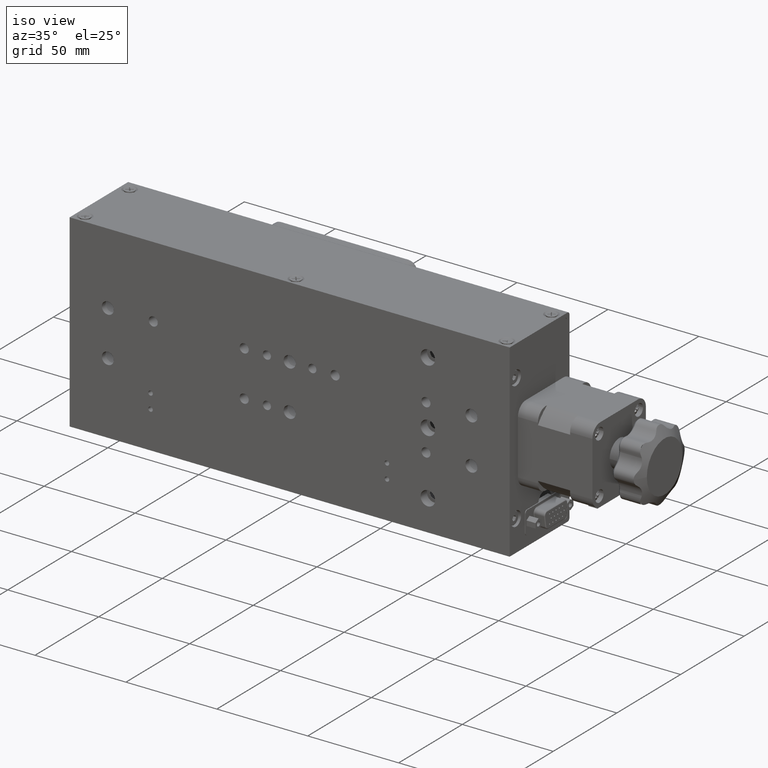
[diagram: clean part render]
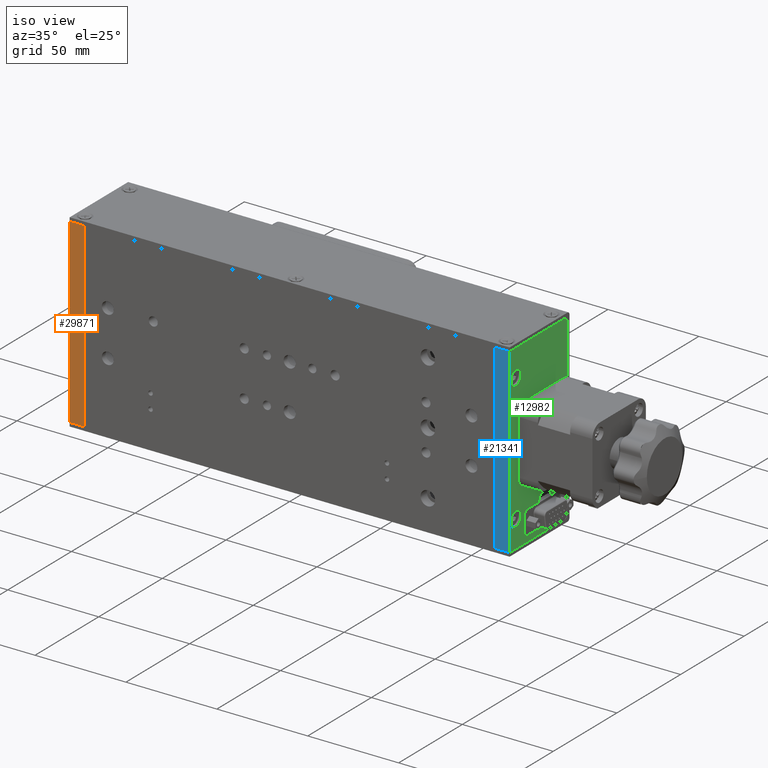
[diagram: same view with three faces highlighted in distinct colors, each labeled with its STEP entity id]
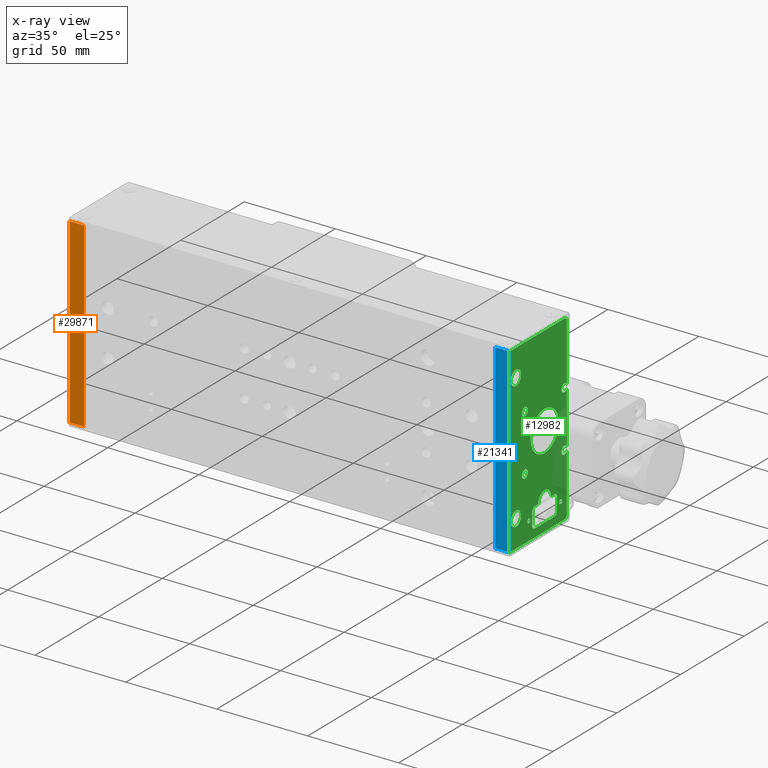
[diagram: x-ray of the same camera — body ghosted, the three highlighted faces saturated]
A machine part, iso view with three faces highlighted in distinct colors.
The next image is the same camera in x-ray (body ghosted, the three faces saturated) — at least one of them is partly hidden behind the body in this view.
Their STEP definitions:

[orange] entity #29871 — the highlighted planar face has unit normal (0, 1, 0).
#688 = CARTESIAN_POINT ( 'NONE',  ( -121.0000000000000100, 0.0000000000000000000, 50.00000000000000000 ) ) ;
#836 = EDGE_CURVE ( 'NONE', #26677, #17364, #11246, .T. ) ;
#1083 = AXIS2_PLACEMENT_3D ( 'NONE', #19672, #3328, #22498 ) ;
#3090 = VECTOR ( 'NONE', #12818, 1000.000000000000000 ) ;
#3328 = DIRECTION ( 'NONE',  ( 0.0000000000000000000, 1.000000000000000000, 0.0000000000000000000 ) ) ;
#4644 = EDGE_LOOP ( 'NONE', ( #24089, #24275, #25326, #11110 ) ) ;
#5224 = VECTOR ( 'NONE', #30738, 1000.000000000000000 ) ;
#5941 = PLANE ( 'NONE',  #1083 ) ;
#7901 = CARTESIAN_POINT ( 'NONE',  ( -121.0000000000000100, 0.0000000000000000000, 50.00000000000000000 ) ) ;
#9509 = EDGE_CURVE ( 'NONE', #24808, #20446, #17739, .T. ) ;
#10645 = DIRECTION ( 'NONE',  ( 1.000000000000000000, 0.0000000000000000000, 0.0000000000000000000 ) ) ;
#11110 = ORIENTED_EDGE ( 'NONE', *, *, #31857, .T. ) ;
#11246 = LINE ( 'NONE', #13892, #3090 ) ;
#12373 = CARTESIAN_POINT ( 'NONE',  ( -113.0000000000000000, 0.0000000000000000000, -50.00000000000000000 ) ) ;
#12818 = DIRECTION ( 'NONE',  ( 1.000000000000000000, 0.0000000000000000000, 0.0000000000000000000 ) ) ;
#13892 = CARTESIAN_POINT ( 'NONE',  ( -121.0000000000000100, 0.0000000000000000000, -50.00000000000000000 ) ) ;
#14560 = LINE ( 'NONE', #29273, #21864 ) ;
#15562 = DIRECTION ( 'NONE',  ( 0.0000000000000000000, -0.0000000000000000000, -1.000000000000000000 ) ) ;
#17364 = VERTEX_POINT ( 'NONE', #12373 ) ;
#17739 = LINE ( 'NONE', #7901, #25069 ) ;
#19672 = CARTESIAN_POINT ( 'NONE',  ( -121.0000000000000100, 0.0000000000000000000, 50.00000000000000000 ) ) ;
#20446 = VERTEX_POINT ( 'NONE', #25973 ) ;
#21683 = FACE_OUTER_BOUND ( 'NONE', #4644, .T. ) ;
#21864 = VECTOR ( 'NONE', #15562, 1000.000000000000000 ) ;
#22283 = CARTESIAN_POINT ( 'NONE',  ( -113.0000000000000000, 0.0000000000000000000, 50.00000000000000000 ) ) ;
#22498 = DIRECTION ( 'NONE',  ( -1.000000000000000000, 0.0000000000000000000, 0.0000000000000000000 ) ) ;
#24089 = ORIENTED_EDGE ( 'NONE', *, *, #836, .T. ) ;
#24275 = ORIENTED_EDGE ( 'NONE', *, *, #33282, .F. ) ;
#24808 = VERTEX_POINT ( 'NONE', #688 ) ;
#25069 = VECTOR ( 'NONE', #10645, 1000.000000000000000 ) ;
#25326 = ORIENTED_EDGE ( 'NONE', *, *, #9509, .F. ) ;
#25973 = CARTESIAN_POINT ( 'NONE',  ( -113.0000000000000000, 0.0000000000000000000, 50.00000000000000000 ) ) ;
#26677 = VERTEX_POINT ( 'NONE', #26865 ) ;
#26865 = CARTESIAN_POINT ( 'NONE',  ( -121.0000000000000100, 0.0000000000000000000, -50.00000000000000000 ) ) ;
#27137 = LINE ( 'NONE', #22283, #5224 ) ;
#29273 = CARTESIAN_POINT ( 'NONE',  ( -121.0000000000000100, 0.0000000000000000000, 50.00000000000000000 ) ) ;
#29871 = ADVANCED_FACE ( 'NONE', ( #21683 ), #5941, .F. ) ;
#30738 = DIRECTION ( 'NONE',  ( 0.0000000000000000000, -0.0000000000000000000, -1.000000000000000000 ) ) ;
#31857 = EDGE_CURVE ( 'NONE', #24808, #26677, #14560, .T. ) ;
#33282 = EDGE_CURVE ( 'NONE', #20446, #17364, #27137, .T. ) ;

[blue] entity #21341 — the highlighted planar face has unit normal (-0, 1, 0).
#269 = VERTEX_POINT ( 'NONE', #25150 ) ;
#757 = DIRECTION ( 'NONE',  ( -0.0000000000000000000, -5.551115123125781500E-017, 1.000000000000000000 ) ) ;
#5368 = DIRECTION ( 'NONE',  ( -0.0000000000000000000, 1.000000000000000000, 5.551115123125781500E-017 ) ) ;
#6617 = FACE_OUTER_BOUND ( 'NONE', #23344, .T. ) ;
#7030 = EDGE_CURVE ( 'NONE', #11989, #11860, #24735, .T. ) ;
#7035 = VECTOR ( 'NONE', #12781, 1000.000000000000000 ) ;
#7866 = CARTESIAN_POINT ( 'NONE',  ( 121.0000000000000100, 5.030698080332740600E-015, 50.00000000000000700 ) ) ;
#9353 = EDGE_CURVE ( 'NONE', #15656, #269, #22493, .T. ) ;
#9994 = EDGE_CURVE ( 'NONE', #11989, #15656, #31484, .T. ) ;
#10018 = CARTESIAN_POINT ( 'NONE',  ( 121.0000000000000100, 5.030698080332740600E-015, 50.00000000000000700 ) ) ;
#10401 = AXIS2_PLACEMENT_3D ( 'NONE', #21798, #5368, #24582 ) ;
#11580 = ORIENTED_EDGE ( 'NONE', *, *, #9353, .T. ) ;
#11860 = VERTEX_POINT ( 'NONE', #26298 ) ;
#11989 = VERTEX_POINT ( 'NONE', #21315 ) ;
#12183 = ORIENTED_EDGE ( 'NONE', *, *, #7030, .F. ) ;
#12781 = DIRECTION ( 'NONE',  ( -1.000000000000000000, 0.0000000000000000000, 0.0000000000000000000 ) ) ;
#14423 = CARTESIAN_POINT ( 'NONE',  ( 121.0000000000000100, 1.058181320345852300E-014, -50.00000000000002100 ) ) ;
#15053 = LINE ( 'NONE', #28720, #22335 ) ;
#15656 = VERTEX_POINT ( 'NONE', #7866 ) ;
#20224 = DIRECTION ( 'NONE',  ( -0.0000000000000000000, -5.551115123125781500E-017, 1.000000000000000000 ) ) ;
#21315 = CARTESIAN_POINT ( 'NONE',  ( 121.0000000000000100, 1.058181320345852300E-014, -50.00000000000002100 ) ) ;
#21341 = ADVANCED_FACE ( 'NONE', ( #6617 ), #27219, .F. ) ;
#21798 = CARTESIAN_POINT ( 'NONE',  ( 121.0000000000000100, 1.058181320345852300E-014, -50.00000000000002100 ) ) ;
#22335 = VECTOR ( 'NONE', #20224, 1000.000000000000000 ) ;
#22493 = LINE ( 'NONE', #10018, #7035 ) ;
#23260 = VECTOR ( 'NONE', #757, 1000.000000000000000 ) ;
#23344 = EDGE_LOOP ( 'NONE', ( #11580, #25805, #12183, #29904 ) ) ;
#23582 = CARTESIAN_POINT ( 'NONE',  ( 121.0000000000000100, 1.058181320345852300E-014, -50.00000000000002100 ) ) ;
#24582 = DIRECTION ( 'NONE',  ( 1.000000000000000000, 0.0000000000000000000, 0.0000000000000000000 ) ) ;
#24735 = LINE ( 'NONE', #23582, #31212 ) ;
#25150 = CARTESIAN_POINT ( 'NONE',  ( 113.0000000000000000, 5.030698080332740600E-015, 50.00000000000000700 ) ) ;
#25805 = ORIENTED_EDGE ( 'NONE', *, *, #26044, .F. ) ;
#26044 = EDGE_CURVE ( 'NONE', #11860, #269, #15053, .T. ) ;
#26298 = CARTESIAN_POINT ( 'NONE',  ( 113.0000000000000000, 1.058181320345852300E-014, -50.00000000000002100 ) ) ;
#26376 = DIRECTION ( 'NONE',  ( -1.000000000000000000, 0.0000000000000000000, 0.0000000000000000000 ) ) ;
#27219 = PLANE ( 'NONE',  #10401 ) ;
#28720 = CARTESIAN_POINT ( 'NONE',  ( 113.0000000000000000, 1.058181320345852300E-014, -50.00000000000002100 ) ) ;
#29904 = ORIENTED_EDGE ( 'NONE', *, *, #9994, .T. ) ;
#31212 = VECTOR ( 'NONE', #26376, 1000.000000000000000 ) ;
#31484 = LINE ( 'NONE', #14423, #23260 ) ;

[green] entity #12982 — the highlighted planar face has unit normal (-1, 0, 0).
#41 = DIRECTION ( 'NONE',  ( 1.000000000000000000, 0.0000000000000000000, 0.0000000000000000000 ) ) ;
#302 = DIRECTION ( 'NONE',  ( 1.000000000000000000, 0.0000000000000000000, 0.0000000000000000000 ) ) ;
#406 = CARTESIAN_POINT ( 'NONE',  ( 121.0000000000000300, 43.00000000000000700, 15.49999999999999800 ) ) ;
#709 = VERTEX_POINT ( 'NONE', #4170 ) ;
#715 = EDGE_LOOP ( 'NONE', ( #5901, #16315 ) ) ;
#716 = FACE_BOUND ( 'NONE', #715, .T. ) ;
#757 = DIRECTION ( 'NONE',  ( -0.0000000000000000000, -5.551115123125781500E-017, 1.000000000000000000 ) ) ;
#979 = EDGE_CURVE ( 'NONE', #34283, #18808, #21072, .T. ) ;
#1014 = CARTESIAN_POINT ( 'NONE',  ( 121.0000000000000100, 5.000000000000010700, -35.00000000000001400 ) ) ;
#1064 = CARTESIAN_POINT ( 'NONE',  ( 121.0000000000000100, 43.00000000000000700, -48.00000000000002100 ) ) ;
#1354 = ORIENTED_EDGE ( 'NONE', *, *, #9619, .F. ) ;
#1371 = DIRECTION ( 'NONE',  ( 0.0000000000000000000, 0.0000000000000000000, -1.000000000000000000 ) ) ;
#1485 = LINE ( 'NONE', #8121, #4934 ) ;
#1626 = ORIENTED_EDGE ( 'NONE', *, *, #9199, .T. ) ;
#1647 = CARTESIAN_POINT ( 'NONE',  ( 121.0000000000000100, 27.50000000000001400, -7.932920441069873900E-015 ) ) ;
#1719 = VERTEX_POINT ( 'NONE', #10387 ) ;
#1990 = CARTESIAN_POINT ( 'NONE',  ( 121.0000000000000100, 37.25000000000001400, -43.50000000000001400 ) ) ;
#2237 = EDGE_CURVE ( 'NONE', #32467, #5834, #29579, .T. ) ;
#2370 = AXIS2_PLACEMENT_3D ( 'NONE', #21248, #4828, #24025 ) ;
#2451 = EDGE_CURVE ( 'NONE', #27959, #29873, #9288, .T. ) ;
#2462 = ORIENTED_EDGE ( 'NONE', *, *, #35621, .T. ) ;
#2518 = CARTESIAN_POINT ( 'NONE',  ( 121.0000000000000100, 17.75000000000001400, -43.50000000000001400 ) ) ;
#2652 = CIRCLE ( 'NONE', #26771, 3.999999999999989800 ) ;
#2852 = EDGE_CURVE ( 'NONE', #7967, #15656, #5402, .T. ) ;
#2870 = EDGE_CURVE ( 'NONE', #4032, #29607, #4552, .T. ) ;
#2928 = AXIS2_PLACEMENT_3D ( 'NONE', #3788, #17798, #9598 ) ;
#2935 = VERTEX_POINT ( 'NONE', #13208 ) ;
#3075 = CIRCLE ( 'NONE', #30358, 2.249999999999998700 ) ;
#3145 = DIRECTION ( 'NONE',  ( 0.0000000000000000000, 1.000000000000000000, 0.0000000000000000000 ) ) ;
#3149 = VERTEX_POINT ( 'NONE', #23675 ) ;
#3192 = DIRECTION ( 'NONE',  ( -0.0000000000000000000, -5.551115123125781500E-017, 1.000000000000000000 ) ) ;
#3223 = AXIS2_PLACEMENT_3D ( 'NONE', #11753, #31022, #14505 ) ;
#3612 = LINE ( 'NONE', #4782, #18167 ) ;
#3750 = VERTEX_POINT ( 'NONE', #22103 ) ;
#3788 = CARTESIAN_POINT ( 'NONE',  ( 121.0000000000000100, 35.25000000000000000, -36.50000000000002100 ) ) ;
#3849 = DIRECTION ( 'NONE',  ( 0.0000000000000000000, 1.000000000000000000, 0.0000000000000000000 ) ) ;
#4032 = VERTEX_POINT ( 'NONE', #22893 ) ;
#4170 = CARTESIAN_POINT ( 'NONE',  ( 121.0000000000000100, 45.00000000000001400, -48.00000000000002100 ) ) ;
#4284 = EDGE_CURVE ( 'NONE', #9624, #18108, #19456, .T. ) ;
#4304 = CARTESIAN_POINT ( 'NONE',  ( 121.0000000000000100, 45.00000000000001400, -50.00000000000002100 ) ) ;
#4417 = DIRECTION ( 'NONE',  ( 0.0000000000000000000, 0.0000000000000000000, -1.000000000000000000 ) ) ;
#4552 = CIRCLE ( 'NONE', #2928, 2.000000000000001800 ) ;
#4613 = DIRECTION ( 'NONE',  ( -1.541976423090495100E-016, -1.000000000000000000, -5.551115123125782100E-017 ) ) ;
#4696 = LINE ( 'NONE', #18257, #11117 ) ;
#4782 = CARTESIAN_POINT ( 'NONE',  ( 121.0000000000000100, 17.75000000000001100, -36.50000000000002100 ) ) ;
#4788 = EDGE_CURVE ( 'NONE', #29873, #27959, #13391, .T. ) ;
#4828 = DIRECTION ( 'NONE',  ( -1.000000000000000000, 1.734723475976807600E-016, 9.629649721936179300E-033 ) ) ;
#4848 = AXIS2_PLACEMENT_3D ( 'NONE', #14037, #33330, #16819 ) ;
#4934 = VECTOR ( 'NONE', #21653, 1000.000000000000000 ) ;
#4957 = ORIENTED_EDGE ( 'NONE', *, *, #13370, .T. ) ;
#5328 = VERTEX_POINT ( 'NONE', #20984 ) ;
#5402 = LINE ( 'NONE', #14926, #32946 ) ;
#5530 = DIRECTION ( 'NONE',  ( 1.000000000000000000, 0.0000000000000000000, 0.0000000000000000000 ) ) ;
#5834 = VERTEX_POINT ( 'NONE', #28360 ) ;
#5883 = EDGE_CURVE ( 'NONE', #2935, #27059, #24610, .T. ) ;
#5901 = ORIENTED_EDGE ( 'NONE', *, *, #979, .F. ) ;
#6054 = VERTEX_POINT ( 'NONE', #2518 ) ;
#6162 = DIRECTION ( 'NONE',  ( -0.0000000000000000000, -1.046781708932291700E-015, 1.000000000000000000 ) ) ;
#6208 = VERTEX_POINT ( 'NONE', #17143 ) ;
#6266 = CIRCLE ( 'NONE', #16338, 3.999999999999993300 ) ;
#6354 = CARTESIAN_POINT ( 'NONE',  ( 121.0000000000000100, 12.00000000000001400, 15.49999999999998900 ) ) ;
#6436 = ORIENTED_EDGE ( 'NONE', *, *, #4788, .F. ) ;
#6486 = AXIS2_PLACEMENT_3D ( 'NONE', #12857, #32169, #15649 ) ;
#6964 = AXIS2_PLACEMENT_3D ( 'NONE', #15109, #34381, #11392 ) ;
#7078 = ORIENTED_EDGE ( 'NONE', *, *, #28794, .F. ) ;
#7082 = CIRCLE ( 'NONE', #11105, 1.130299999999986800 ) ;
#7179 = AXIS2_PLACEMENT_3D ( 'NONE', #13789, #33090, #16566 ) ;
#7866 = CARTESIAN_POINT ( 'NONE',  ( 121.0000000000000100, 5.030698080332740600E-015, 50.00000000000000700 ) ) ;
#7967 = VERTEX_POINT ( 'NONE', #26374 ) ;
#8039 = FACE_BOUND ( 'NONE', #20364, .T. ) ;
#8121 = CARTESIAN_POINT ( 'NONE',  ( 121.0000000000000100, 35.25000000000000000, -45.50000000000001400 ) ) ;
#8537 = EDGE_CURVE ( 'NONE', #12320, #16305, #6266, .T. ) ;
#8853 = FACE_BOUND ( 'NONE', #22946, .T. ) ;
#9082 = DIRECTION ( 'NONE',  ( 0.0000000000000000000, 1.000000000000000000, 0.0000000000000000000 ) ) ;
#9199 = EDGE_CURVE ( 'NONE', #13510, #709, #32891, .T. ) ;
#9288 = CIRCLE ( 'NONE', #34017, 1.130299999999986800 ) ;
#9403 = EDGE_CURVE ( 'NONE', #24408, #6054, #3612, .T. ) ;
#9506 = ORIENTED_EDGE ( 'NONE', *, *, #11334, .F. ) ;
#9598 = DIRECTION ( 'NONE',  ( 0.0000000000000000000, 0.0000000000000000000, -1.000000000000000000 ) ) ;
#9619 = EDGE_CURVE ( 'NONE', #29607, #23730, #31972, .T. ) ;
#9624 = VERTEX_POINT ( 'NONE', #11116 ) ;
#9673 = EDGE_CURVE ( 'NONE', #709, #16921, #21132, .T. ) ;
#9701 = CARTESIAN_POINT ( 'NONE',  ( 121.0000000000000100, 12.00000000000001400, -15.50000000000000400 ) ) ;
#9897 = EDGE_CURVE ( 'NONE', #5834, #32467, #2652, .T. ) ;
#9994 = EDGE_CURVE ( 'NONE', #11989, #15656, #31484, .T. ) ;
#10178 = ORIENTED_EDGE ( 'NONE', *, *, #2451, .F. ) ;
#10279 = CARTESIAN_POINT ( 'NONE',  ( 121.0000000000000100, 27.50000000000001400, 10.99999999999999300 ) ) ;
#10387 = CARTESIAN_POINT ( 'NONE',  ( 121.0000000000000100, 22.50000000000001400, -34.50000000000001400 ) ) ;
#10438 = CARTESIAN_POINT ( 'NONE',  ( 121.0000000000000100, 15.00000000000001400, -40.00000000000001400 ) ) ;
#10602 = VERTEX_POINT ( 'NONE', #22408 ) ;
#10713 = CARTESIAN_POINT ( 'NONE',  ( 121.0000000000000100, 12.00000000000001400, 15.49999999999998900 ) ) ;
#11002 = LINE ( 'NONE', #31097, #32113 ) ;
#11105 = AXIS2_PLACEMENT_3D ( 'NONE', #32333, #15830, #35103 ) ;
#11116 = CARTESIAN_POINT ( 'NONE',  ( 121.0000000000000100, 27.50000000000001400, -11.00000000000001100 ) ) ;
#11117 = VECTOR ( 'NONE', #4613, 1000.000000000000000 ) ;
#11334 = EDGE_CURVE ( 'NONE', #5328, #28275, #17674, .T. ) ;
#11392 = DIRECTION ( 'NONE',  ( 0.0000000000000000000, -1.000000000000000000, 0.0000000000000000000 ) ) ;
#11630 = CARTESIAN_POINT ( 'NONE',  ( 121.0000000000000100, 35.25000000000000000, -43.50000000000001400 ) ) ;
#11635 = CARTESIAN_POINT ( 'NONE',  ( 121.0000000000000100, 22.50000000000001400, -34.50000000000001400 ) ) ;
#11753 = CARTESIAN_POINT ( 'NONE',  ( 121.0000000000000100, 19.75000000000001100, -43.50000000000001400 ) ) ;
#11793 = EDGE_LOOP ( 'NONE', ( #27370, #25246 ) ) ;
#11928 = AXIS2_PLACEMENT_3D ( 'NONE', #16451, #41, #19197 ) ;
#11989 = VERTEX_POINT ( 'NONE', #21315 ) ;
#12031 = DIRECTION ( 'NONE',  ( -1.541976423090495100E-016, -1.000000000000000000, -5.551115123125782100E-017 ) ) ;
#12040 = CARTESIAN_POINT ( 'NONE',  ( 121.0000000000000100, 5.000000000000007100, 31.00000000000001100 ) ) ;
#12263 = CARTESIAN_POINT ( 'NONE',  ( 121.0000000000000100, 45.00000000000001400, -50.00000000000002100 ) ) ;
#12320 = VERTEX_POINT ( 'NONE', #12040 ) ;
#12462 = DIRECTION ( 'NONE',  ( 0.0000000000000000000, 1.000000000000000000, 0.0000000000000000000 ) ) ;
#12686 = EDGE_CURVE ( 'NONE', #16305, #12320, #31321, .T. ) ;
#12739 = EDGE_CURVE ( 'NONE', #29523, #3149, #17927, .T. ) ;
#12799 = CARTESIAN_POINT ( 'NONE',  ( 121.0000000000000100, 27.50000000000001800, -34.50000000000001400 ) ) ;
#12857 = CARTESIAN_POINT ( 'NONE',  ( 121.0000000000000100, 15.00000000000001400, -40.00000000000001400 ) ) ;
#12982 = ADVANCED_FACE ( 'NONE', ( #29962, #30829, #8853, #23482, #22620, #16192, #15325, #8039, #716 ), #14937, .F. ) ;
#13016 = ORIENTED_EDGE ( 'NONE', *, *, #9673, .T. ) ;
#13108 = ORIENTED_EDGE ( 'NONE', *, *, #12739, .T. ) ;
#13194 = DIRECTION ( 'NONE',  ( 0.0000000000000000000, -1.000000000000000000, 0.0000000000000000000 ) ) ;
#13208 = CARTESIAN_POINT ( 'NONE',  ( 121.0000000000000100, 9.750000000000016000, -15.50000000000000400 ) ) ;
#13370 = EDGE_CURVE ( 'NONE', #13960, #7967, #23411, .T. ) ;
#13391 = CIRCLE ( 'NONE', #6486, 1.130299999999986800 ) ;
#13444 = DIRECTION ( 'NONE',  ( 0.0000000000000000000, 1.000000000000000000, 0.0000000000000000000 ) ) ;
#13493 = LINE ( 'NONE', #4304, #20785 ) ;
#13510 = VERTEX_POINT ( 'NONE', #31267 ) ;
#13770 = CARTESIAN_POINT ( 'NONE',  ( 121.0000000000000100, 5.000000000000007100, 38.99999999999999300 ) ) ;
#13789 = CARTESIAN_POINT ( 'NONE',  ( 121.0000000000000100, 27.50000000000001400, -7.932920441069873900E-015 ) ) ;
#13878 = CARTESIAN_POINT ( 'NONE',  ( 121.0000000000000100, 16.13030000000000200, -40.00000000000001400 ) ) ;
#13954 = DIRECTION ( 'NONE',  ( -1.000000000000000000, 1.734723475976807600E-016, 9.629649721936179300E-033 ) ) ;
#13960 = VERTEX_POINT ( 'NONE', #22403 ) ;
#14037 = CARTESIAN_POINT ( 'NONE',  ( 121.0000000000000100, 43.00000000000000700, 48.00000000000000700 ) ) ;
#14360 = AXIS2_PLACEMENT_3D ( 'NONE', #1014, #17455, #33981 ) ;
#14377 = EDGE_CURVE ( 'NONE', #27059, #2935, #23002, .T. ) ;
#14386 = DIRECTION ( 'NONE',  ( 0.0000000000000000000, 0.0000000000000000000, 1.000000000000000000 ) ) ;
#14423 = CARTESIAN_POINT ( 'NONE',  ( 121.0000000000000100, 1.058181320345852300E-014, -50.00000000000002100 ) ) ;
#14505 = DIRECTION ( 'NONE',  ( 0.0000000000000000000, 0.0000000000000000000, -1.000000000000000000 ) ) ;
#14627 = ORIENTED_EDGE ( 'NONE', *, *, #2870, .F. ) ;
#14654 = VECTOR ( 'NONE', #33681, 1000.000000000000000 ) ;
#14695 = ORIENTED_EDGE ( 'NONE', *, *, #9897, .F. ) ;
#14926 = CARTESIAN_POINT ( 'NONE',  ( 121.0000000000000100, 45.00000000000001400, 50.00000000000000700 ) ) ;
#14937 = PLANE ( 'NONE',  #27136 ) ;
#15006 = EDGE_LOOP ( 'NONE', ( #30393, #24286, #1354, #14627, #16499, #9506, #22021, #32573, #32091, #17542 ) ) ;
#15054 = DIRECTION ( 'NONE',  ( 1.541976423090495100E-016, 1.000000000000000000, 5.551115123125781500E-017 ) ) ;
#15109 = CARTESIAN_POINT ( 'NONE',  ( 121.0000000000000100, 40.00000000000001400, -40.00000000000001400 ) ) ;
#15286 = ORIENTED_EDGE ( 'NONE', *, *, #34908, .T. ) ;
#15325 = FACE_OUTER_BOUND ( 'NONE', #25955, .T. ) ;
#15549 = CARTESIAN_POINT ( 'NONE',  ( 121.0000000000000100, 32.50000000000001400, -34.50000000000001400 ) ) ;
#15592 = DIRECTION ( 'NONE',  ( 0.0000000000000000000, 0.0000000000000000000, -1.000000000000000000 ) ) ;
#15649 = DIRECTION ( 'NONE',  ( 0.0000000000000000000, -1.000000000000000000, 0.0000000000000000000 ) ) ;
#15656 = VERTEX_POINT ( 'NONE', #7866 ) ;
#15830 = DIRECTION ( 'NONE',  ( 1.000000000000000000, -1.541976423090495600E-016, -8.559688641721049300E-033 ) ) ;
#15884 = CARTESIAN_POINT ( 'NONE',  ( 121.0000000000000100, 5.000000000000010700, -39.00000000000000700 ) ) ;
#16192 = FACE_BOUND ( 'NONE', #33919, .T. ) ;
#16199 = VECTOR ( 'NONE', #6162, 1000.000000000000000 ) ;
#16305 = VERTEX_POINT ( 'NONE', #13770 ) ;
#16315 = ORIENTED_EDGE ( 'NONE', *, *, #21213, .F. ) ;
#16338 = AXIS2_PLACEMENT_3D ( 'NONE', #21966, #5530, #24768 ) ;
#16451 = CARTESIAN_POINT ( 'NONE',  ( 121.0000000000000100, 5.000000000000007100, 35.00000000000000000 ) ) ;
#16479 = VERTEX_POINT ( 'NONE', #25808 ) ;
#16499 = ORIENTED_EDGE ( 'NONE', *, *, #26938, .F. ) ;
#16566 = DIRECTION ( 'NONE',  ( 0.0000000000000000000, 0.0000000000000000000, -1.000000000000000000 ) ) ;
#16723 = CARTESIAN_POINT ( 'NONE',  ( 121.0000000000000100, 5.000000000000010700, -35.00000000000001400 ) ) ;
#16814 = CIRCLE ( 'NONE', #23791, 1.999999999999994900 ) ;
#16819 = DIRECTION ( 'NONE',  ( 0.0000000000000000000, 1.000000000000000000, 0.0000000000000000000 ) ) ;
#16921 = VERTEX_POINT ( 'NONE', #32062 ) ;
#17143 = CARTESIAN_POINT ( 'NONE',  ( 121.0000000000000100, 14.25000000000001200, 15.49999999999998900 ) ) ;
#17285 = VECTOR ( 'NONE', #30350, 1000.000000000000000 ) ;
#17359 = CIRCLE ( 'NONE', #29078, 2.249999999999998700 ) ;
#17455 = DIRECTION ( 'NONE',  ( 1.000000000000000000, 0.0000000000000000000, 0.0000000000000000000 ) ) ;
#17542 = ORIENTED_EDGE ( 'NONE', *, *, #28634, .F. ) ;
#17560 = CARTESIAN_POINT ( 'NONE',  ( 121.0000000000000100, 41.13029999999999800, -40.00000000000001400 ) ) ;
#17674 = CIRCLE ( 'NONE', #35404, 2.000000000000008900 ) ;
#17686 = CARTESIAN_POINT ( 'NONE',  ( 121.0000000000000100, 14.25000000000001200, -15.50000000000000400 ) ) ;
#17798 = DIRECTION ( 'NONE',  ( 1.000000000000000000, 0.0000000000000000000, 0.0000000000000000000 ) ) ;
#17802 = EDGE_CURVE ( 'NONE', #6054, #3750, #35624, .T. ) ;
#17805 = DIRECTION ( 'NONE',  ( 1.000000000000000000, 0.0000000000000000000, 0.0000000000000000000 ) ) ;
#17927 = CIRCLE ( 'NONE', #32248, 2.250000000000001800 ) ;
#18072 = CARTESIAN_POINT ( 'NONE',  ( 121.0000000000000100, 45.00000000000001400, 14.46922359359559200 ) ) ;
#18108 = VERTEX_POINT ( 'NONE', #10279 ) ;
#18167 = VECTOR ( 'NONE', #23974, 1000.000000000000000 ) ;
#18257 = CARTESIAN_POINT ( 'NONE',  ( 121.0000000000000100, 45.00000000000001400, -50.00000000000002100 ) ) ;
#18406 = AXIS2_PLACEMENT_3D ( 'NONE', #1647, #20816, #4417 ) ;
#18584 = ORIENTED_EDGE ( 'NONE', *, *, #9994, .F. ) ;
#18612 = EDGE_CURVE ( 'NONE', #3750, #5328, #1485, .T. ) ;
#18688 = EDGE_CURVE ( 'NONE', #16921, #29852, #26406, .T. ) ;
#18808 = VERTEX_POINT ( 'NONE', #17560 ) ;
#19197 = DIRECTION ( 'NONE',  ( 0.0000000000000000000, 0.0000000000000000000, -1.000000000000000000 ) ) ;
#19428 = DIRECTION ( 'NONE',  ( 0.0000000000000000000, 0.0000000000000000000, -1.000000000000000000 ) ) ;
#19456 = CIRCLE ( 'NONE', #18406, 11.00000000000000200 ) ;
#19530 = DIRECTION ( 'NONE',  ( -1.000000000000000000, 1.734723475976807600E-016, 9.629649721936179300E-033 ) ) ;
#20072 = DIRECTION ( 'NONE',  ( -0.0000000000000000000, -5.551115123125781500E-017, 1.000000000000000000 ) ) ;
#20210 = DIRECTION ( 'NONE',  ( 1.000000000000000000, -1.541976423090495600E-016, -8.559688641721049300E-033 ) ) ;
#20364 = EDGE_LOOP ( 'NONE', ( #21578, #14695 ) ) ;
#20497 = AXIS2_PLACEMENT_3D ( 'NONE', #12799, #32106, #15592 ) ;
#20785 = VECTOR ( 'NONE', #26279, 1000.000000000000000 ) ;
#20816 = DIRECTION ( 'NONE',  ( 1.000000000000000000, 0.0000000000000000000, 0.0000000000000000000 ) ) ;
#20945 = EDGE_CURVE ( 'NONE', #6208, #16479, #17359, .T. ) ;
#20984 = CARTESIAN_POINT ( 'NONE',  ( 121.0000000000000100, 35.25000000000000000, -45.50000000000001400 ) ) ;
#21072 = CIRCLE ( 'NONE', #6964, 1.130299999999986800 ) ;
#21132 = LINE ( 'NONE', #33380, #28472 ) ;
#21213 = EDGE_CURVE ( 'NONE', #18808, #34283, #7082, .T. ) ;
#21248 = CARTESIAN_POINT ( 'NONE',  ( 121.0000000000000100, 12.00000000000001400, -15.50000000000000400 ) ) ;
#21315 = CARTESIAN_POINT ( 'NONE',  ( 121.0000000000000100, 1.058181320345852300E-014, -50.00000000000002100 ) ) ;
#21578 = ORIENTED_EDGE ( 'NONE', *, *, #2237, .F. ) ;
#21653 = DIRECTION ( 'NONE',  ( 0.0000000000000000000, 1.000000000000000000, -3.921594232143700000E-016 ) ) ;
#21966 = CARTESIAN_POINT ( 'NONE',  ( 121.0000000000000100, 5.000000000000007100, 35.00000000000000000 ) ) ;
#22021 = ORIENTED_EDGE ( 'NONE', *, *, #18612, .F. ) ;
#22103 = CARTESIAN_POINT ( 'NONE',  ( 121.0000000000000100, 19.75000000000001100, -45.50000000000000700 ) ) ;
#22403 = CARTESIAN_POINT ( 'NONE',  ( 121.0000000000000100, 45.00000000000001400, 48.00000000000000700 ) ) ;
#22408 = CARTESIAN_POINT ( 'NONE',  ( 121.0000000000000100, 19.75000000000001100, -34.50000000000002100 ) ) ;
#22620 = FACE_BOUND ( 'NONE', #15006, .T. ) ;
#22628 = CARTESIAN_POINT ( 'NONE',  ( 121.0000000000000100, 37.25000000000000700, -36.50000000000002100 ) ) ;
#22833 = LINE ( 'NONE', #11635, #14654 ) ;
#22893 = CARTESIAN_POINT ( 'NONE',  ( 121.0000000000000100, 37.25000000000000700, -36.50000000000002100 ) ) ;
#22908 = EDGE_CURVE ( 'NONE', #1719, #10602, #22833, .T. ) ;
#22946 = EDGE_LOOP ( 'NONE', ( #29546, #2462 ) ) ;
#23002 = CIRCLE ( 'NONE', #2370, 2.249999999999998700 ) ;
#23260 = VECTOR ( 'NONE', #757, 1000.000000000000000 ) ;
#23411 = CIRCLE ( 'NONE', #4848, 2.000000000000001800 ) ;
#23482 = FACE_BOUND ( 'NONE', #26398, .T. ) ;
#23491 = LINE ( 'NONE', #22628, #16199 ) ;
#23675 = CARTESIAN_POINT ( 'NONE',  ( 121.0000000000000300, 45.00000000000001400, 16.53077640640440600 ) ) ;
#23730 = VERTEX_POINT ( 'NONE', #15549 ) ;
#23791 = AXIS2_PLACEMENT_3D ( 'NONE', #34329, #17805, #1371 ) ;
#23974 = DIRECTION ( 'NONE',  ( 0.0000000000000000000, 5.551115123125782100E-017, -1.000000000000000000 ) ) ;
#24025 = DIRECTION ( 'NONE',  ( 0.0000000000000000000, 1.000000000000000000, 0.0000000000000000000 ) ) ;
#24182 = ORIENTED_EDGE ( 'NONE', *, *, #24850, .T. ) ;
#24286 = ORIENTED_EDGE ( 'NONE', *, *, #32962, .F. ) ;
#24310 = AXIS2_PLACEMENT_3D ( 'NONE', #9701, #28973, #12462 ) ;
#24408 = VERTEX_POINT ( 'NONE', #34155 ) ;
#24610 = CIRCLE ( 'NONE', #24310, 2.249999999999998700 ) ;
#24768 = DIRECTION ( 'NONE',  ( 0.0000000000000000000, 0.0000000000000000000, -1.000000000000000000 ) ) ;
#24850 = EDGE_CURVE ( 'NONE', #29852, #29523, #11002, .T. ) ;
#25171 = CARTESIAN_POINT ( 'NONE',  ( 121.0000000000000300, 45.00000000000001400, -14.46922359359559900 ) ) ;
#25246 = ORIENTED_EDGE ( 'NONE', *, *, #5883, .T. ) ;
#25573 = DIRECTION ( 'NONE',  ( -1.000000000000000000, 1.734723475976807600E-016, 9.629649721936179300E-033 ) ) ;
#25808 = CARTESIAN_POINT ( 'NONE',  ( 121.0000000000000100, 9.750000000000016000, 15.49999999999998900 ) ) ;
#25955 = EDGE_LOOP ( 'NONE', ( #15286, #4957, #30020, #18584, #7078, #1626, #13016, #30956, #24182, #13108 ) ) ;
#26279 = DIRECTION ( 'NONE',  ( -0.0000000000000000000, -5.551115123125781500E-017, 1.000000000000000000 ) ) ;
#26374 = CARTESIAN_POINT ( 'NONE',  ( 121.0000000000000100, 43.00000000000000700, 50.00000000000000700 ) ) ;
#26398 = EDGE_LOOP ( 'NONE', ( #29353, #33318 ) ) ;
#26406 = CIRCLE ( 'NONE', #32981, 2.250000000000001800 ) ;
#26649 = CARTESIAN_POINT ( 'NONE',  ( 121.0000000000000100, 35.25000000000000000, -34.50000000000001400 ) ) ;
#26771 = AXIS2_PLACEMENT_3D ( 'NONE', #16723, #302, #19428 ) ;
#26938 = EDGE_CURVE ( 'NONE', #28275, #4032, #23491, .T. ) ;
#27059 = VERTEX_POINT ( 'NONE', #17686 ) ;
#27136 = AXIS2_PLACEMENT_3D ( 'NONE', #12263, #31557, #15054 ) ;
#27185 = ORIENTED_EDGE ( 'NONE', *, *, #32590, .F. ) ;
#27240 = ORIENTED_EDGE ( 'NONE', *, *, #4284, .F. ) ;
#27370 = ORIENTED_EDGE ( 'NONE', *, *, #14377, .T. ) ;
#27443 = CARTESIAN_POINT ( 'NONE',  ( 121.0000000000000100, 13.86970000000002700, -40.00000000000001400 ) ) ;
#27556 = CARTESIAN_POINT ( 'NONE',  ( 121.0000000000000100, 35.25000000000000000, -34.50000000000001400 ) ) ;
#27959 = VERTEX_POINT ( 'NONE', #13878 ) ;
#28275 = VERTEX_POINT ( 'NONE', #1990 ) ;
#28360 = CARTESIAN_POINT ( 'NONE',  ( 121.0000000000000100, 5.000000000000010700, -31.00000000000002800 ) ) ;
#28472 = VECTOR ( 'NONE', #3192, 1000.000000000000000 ) ;
#28634 = EDGE_CURVE ( 'NONE', #10602, #24408, #16814, .T. ) ;
#28794 = EDGE_CURVE ( 'NONE', #13510, #11989, #4696, .T. ) ;
#28973 = DIRECTION ( 'NONE',  ( -1.000000000000000000, 1.734723475976807600E-016, 9.629649721936179300E-033 ) ) ;
#29078 = AXIS2_PLACEMENT_3D ( 'NONE', #6354, #25573, #9082 ) ;
#29353 = ORIENTED_EDGE ( 'NONE', *, *, #8537, .F. ) ;
#29519 = AXIS2_PLACEMENT_3D ( 'NONE', #1064, #20210, #3849 ) ;
#29523 = VERTEX_POINT ( 'NONE', #18072 ) ;
#29546 = ORIENTED_EDGE ( 'NONE', *, *, #20945, .T. ) ;
#29579 = CIRCLE ( 'NONE', #14360, 3.999999999999989800 ) ;
#29607 = VERTEX_POINT ( 'NONE', #26649 ) ;
#29694 = DIRECTION ( 'NONE',  ( 1.000000000000000000, -1.541976423090495600E-016, -8.559688641721049300E-033 ) ) ;
#29852 = VERTEX_POINT ( 'NONE', #25171 ) ;
#29873 = VERTEX_POINT ( 'NONE', #27443 ) ;
#29951 = DIRECTION ( 'NONE',  ( -1.000000000000000000, 1.734723475976807600E-016, 9.629649721936179300E-033 ) ) ;
#29962 = FACE_BOUND ( 'NONE', #31550, .T. ) ;
#30020 = ORIENTED_EDGE ( 'NONE', *, *, #2852, .T. ) ;
#30350 = DIRECTION ( 'NONE',  ( 0.0000000000000000000, -1.000000000000000000, -5.551115123125781500E-017 ) ) ;
#30358 = AXIS2_PLACEMENT_3D ( 'NONE', #10713, #29951, #13444 ) ;
#30393 = ORIENTED_EDGE ( 'NONE', *, *, #22908, .F. ) ;
#30458 = CARTESIAN_POINT ( 'NONE',  ( 121.0000000000000300, 43.00000000000000700, -15.50000000000000900 ) ) ;
#30829 = FACE_BOUND ( 'NONE', #11793, .T. ) ;
#30899 = DIRECTION ( 'NONE',  ( 1.000000000000000000, 0.0000000000000000000, 0.0000000000000000000 ) ) ;
#30956 = ORIENTED_EDGE ( 'NONE', *, *, #18688, .T. ) ;
#31022 = DIRECTION ( 'NONE',  ( 1.000000000000000000, 0.0000000000000000000, 0.0000000000000000000 ) ) ;
#31097 = CARTESIAN_POINT ( 'NONE',  ( 121.0000000000000100, 45.00000000000001400, -50.00000000000002100 ) ) ;
#31267 = CARTESIAN_POINT ( 'NONE',  ( 121.0000000000000100, 43.00000000000000700, -50.00000000000002100 ) ) ;
#31321 = CIRCLE ( 'NONE', #11928, 3.999999999999993300 ) ;
#31484 = LINE ( 'NONE', #14423, #23260 ) ;
#31519 = CIRCLE ( 'NONE', #20497, 5.000000000000004400 ) ;
#31550 = EDGE_LOOP ( 'NONE', ( #6436, #10178 ) ) ;
#31557 = DIRECTION ( 'NONE',  ( -1.000000000000000000, 1.541976423090495100E-016, 8.559688641721046600E-033 ) ) ;
#31972 = LINE ( 'NONE', #27556, #17285 ) ;
#32062 = CARTESIAN_POINT ( 'NONE',  ( 121.0000000000000300, 45.00000000000001400, -16.53077640640441400 ) ) ;
#32091 = ORIENTED_EDGE ( 'NONE', *, *, #9403, .F. ) ;
#32106 = DIRECTION ( 'NONE',  ( 1.000000000000000000, 0.0000000000000000000, 0.0000000000000000000 ) ) ;
#32113 = VECTOR ( 'NONE', #20072, 1000.000000000000000 ) ;
#32169 = DIRECTION ( 'NONE',  ( 1.000000000000000000, -1.541976423090495600E-016, -8.559688641721049300E-033 ) ) ;
#32248 = AXIS2_PLACEMENT_3D ( 'NONE', #406, #19530, #3145 ) ;
#32333 = CARTESIAN_POINT ( 'NONE',  ( 121.0000000000000100, 40.00000000000001400, -40.00000000000001400 ) ) ;
#32467 = VERTEX_POINT ( 'NONE', #15884 ) ;
#32573 = ORIENTED_EDGE ( 'NONE', *, *, #17802, .F. ) ;
#32590 = EDGE_CURVE ( 'NONE', #18108, #9624, #35477, .T. ) ;
#32891 = CIRCLE ( 'NONE', #29519, 2.000000000000001800 ) ;
#32946 = VECTOR ( 'NONE', #12031, 1000.000000000000000 ) ;
#32962 = EDGE_CURVE ( 'NONE', #23730, #1719, #31519, .T. ) ;
#32981 = AXIS2_PLACEMENT_3D ( 'NONE', #30458, #13954, #33240 ) ;
#33090 = DIRECTION ( 'NONE',  ( 1.000000000000000000, 0.0000000000000000000, 0.0000000000000000000 ) ) ;
#33240 = DIRECTION ( 'NONE',  ( 0.0000000000000000000, 1.000000000000000000, 0.0000000000000000000 ) ) ;
#33318 = ORIENTED_EDGE ( 'NONE', *, *, #12686, .F. ) ;
#33330 = DIRECTION ( 'NONE',  ( 1.000000000000000000, -1.541976423090495600E-016, -8.559688641721049300E-033 ) ) ;
#33380 = CARTESIAN_POINT ( 'NONE',  ( 121.0000000000000100, 45.00000000000001400, -50.00000000000002100 ) ) ;
#33681 = DIRECTION ( 'NONE',  ( 0.0000000000000000000, -1.000000000000000000, -2.578745298106611600E-015 ) ) ;
#33919 = EDGE_LOOP ( 'NONE', ( #27240, #27185 ) ) ;
#33981 = DIRECTION ( 'NONE',  ( 0.0000000000000000000, 0.0000000000000000000, -1.000000000000000000 ) ) ;
#34017 = AXIS2_PLACEMENT_3D ( 'NONE', #10438, #29694, #13194 ) ;
#34155 = CARTESIAN_POINT ( 'NONE',  ( 121.0000000000000100, 17.75000000000001100, -36.50000000000002100 ) ) ;
#34160 = CARTESIAN_POINT ( 'NONE',  ( 121.0000000000000100, 38.86970000000003000, -40.00000000000001400 ) ) ;
#34283 = VERTEX_POINT ( 'NONE', #34160 ) ;
#34329 = CARTESIAN_POINT ( 'NONE',  ( 121.0000000000000100, 19.75000000000001100, -36.50000000000002100 ) ) ;
#34381 = DIRECTION ( 'NONE',  ( 1.000000000000000000, -1.541976423090495600E-016, -8.559688641721049300E-033 ) ) ;
#34908 = EDGE_CURVE ( 'NONE', #3149, #13960, #13493, .T. ) ;
#35103 = DIRECTION ( 'NONE',  ( 0.0000000000000000000, -1.000000000000000000, 0.0000000000000000000 ) ) ;
#35404 = AXIS2_PLACEMENT_3D ( 'NONE', #11630, #30899, #14386 ) ;
#35477 = CIRCLE ( 'NONE', #7179, 11.00000000000000200 ) ;
#35621 = EDGE_CURVE ( 'NONE', #16479, #6208, #3075, .T. ) ;
#35624 = CIRCLE ( 'NONE', #3223, 1.999999999999994900 ) ;